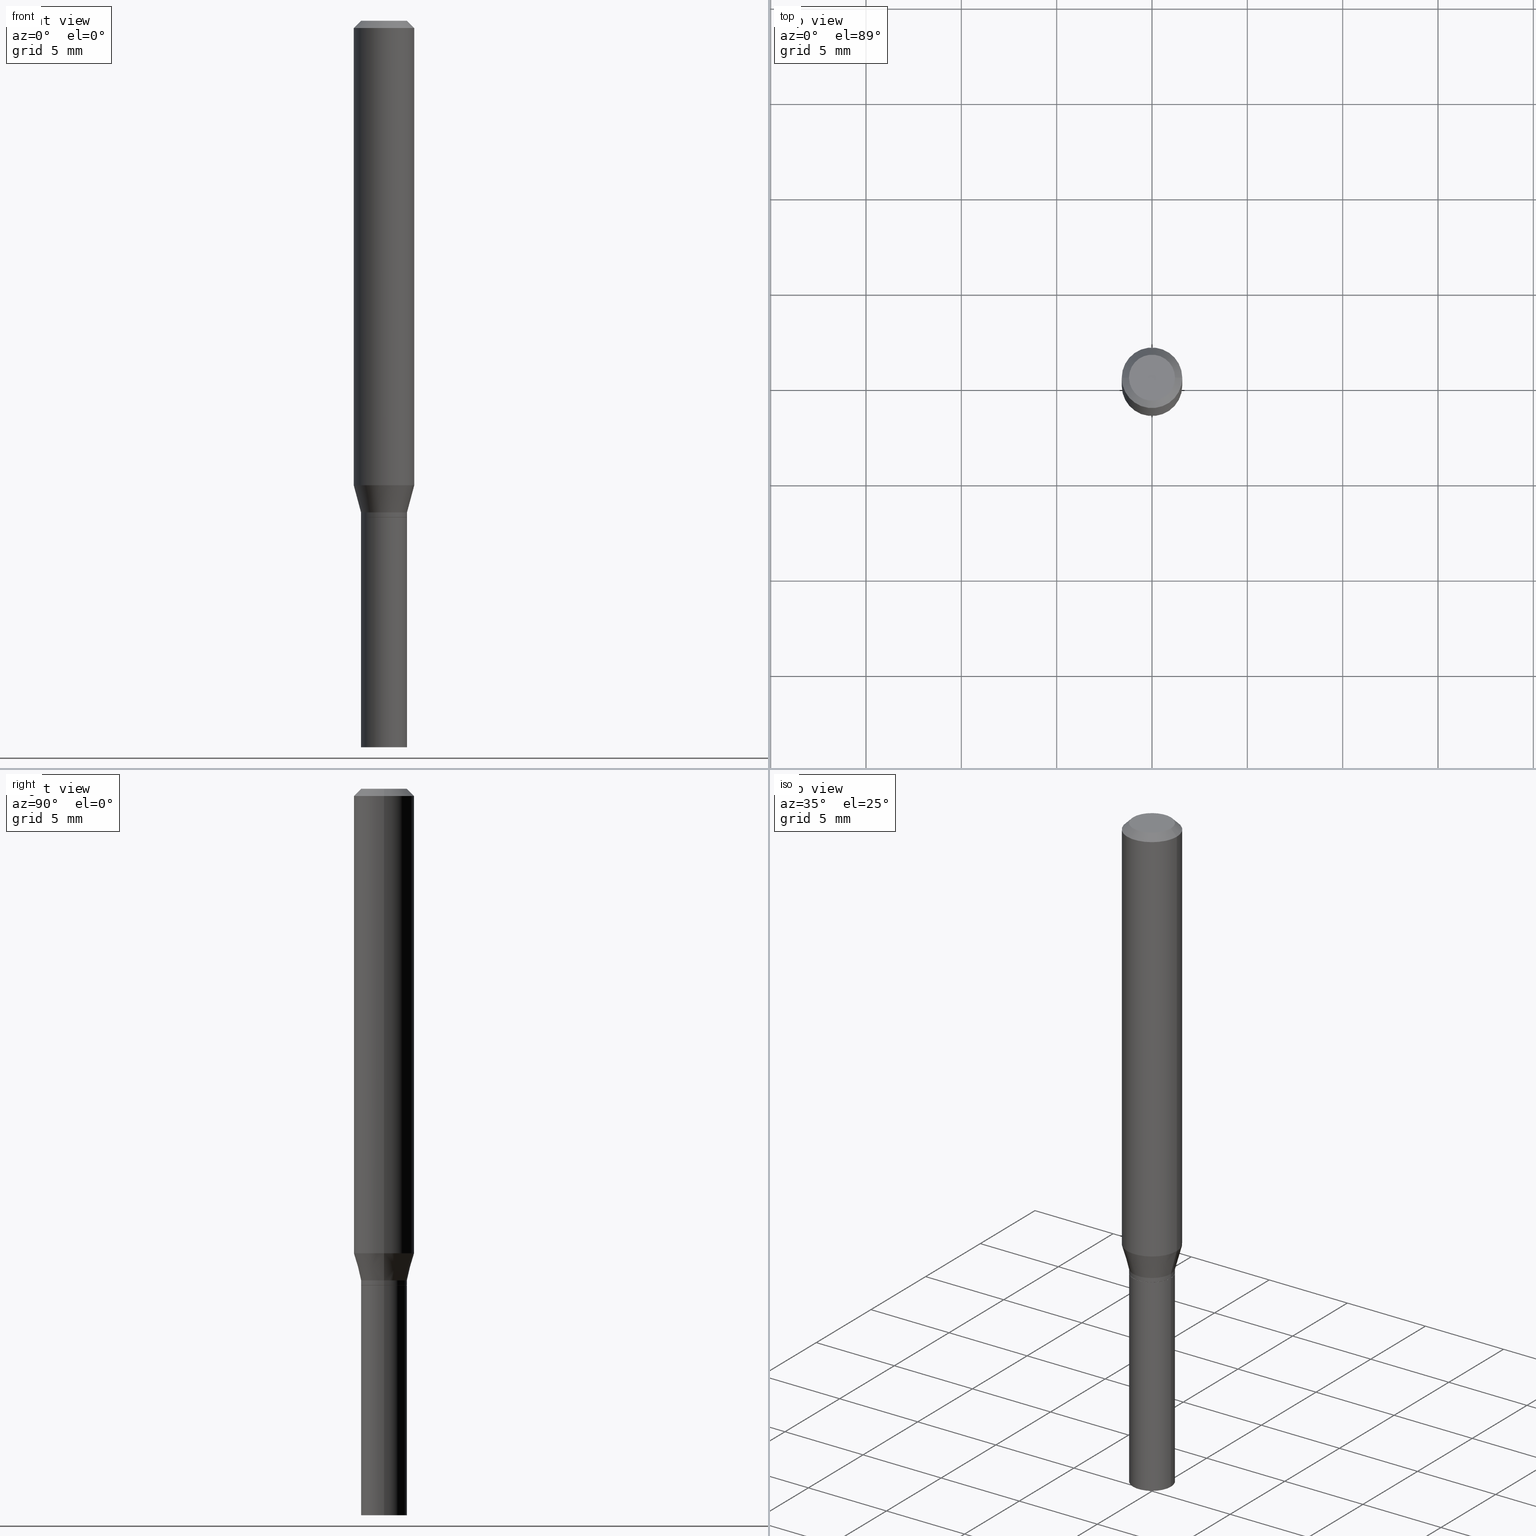
[diagram: canonical four-view strip — front | top / right | iso, engineering-drawing reading convention]
A machine part, canonical four-view strip (front | top / right | iso — engineering-drawing reading convention). The complete STEP part file that produces these views, byte-faithful:
ISO-10303-21;
HEADER;
FILE_DESCRIPTION (( 'STEP AP203' ),
    '1' );
FILE_NAME ('02662.STEP',
    '2024-03-18T21:10:51',
    ( '' ),
    ( '' ),
    'SwSTEP 2.0',
    'SolidWorks 2023',
    '' );
FILE_SCHEMA (( 'CONFIG_CONTROL_DESIGN' ));
ENDSEC;

DATA;
#1 = EDGE_CURVE ( 'NONE', #131, #328, #458, .T. ) ;
#2 = PRODUCT_DEFINITION_SHAPE ( 'NONE', 'NONE',  #362 ) ;
#3 = DIRECTION ( 'NONE',  ( 0.7071067811865456854, -7.319954787623249734E-15, -0.7071067811865493491 ) ) ;
#4 = AXIS2_PLACEMENT_3D ( 'NONE', #201, #378, #16 ) ;
#5 = CARTESIAN_POINT ( 'NONE',  ( -0.06250000000000000000, 4.440892098500626162E-16, -3.074334431409316114E-30 ) ) ;
#6 = ADVANCED_FACE ( 'NONE', ( #424 ), #275, .F. ) ;
#7 = ORIENTED_EDGE ( 'NONE', *, *, #88, .T. ) ;
#8 = CC_DESIGN_PERSON_AND_ORGANIZATION_ASSIGNMENT ( #314, #73, ( #396 ) ) ;
#9 = DIRECTION ( 'NONE',  ( 1.000000000000000000, 0.000000000000000000, 0.000000000000000000 ) ) ;
#10 = ORIENTED_EDGE ( 'NONE', *, *, #407, .F. ) ;
#11 = VERTEX_POINT ( 'NONE', #180 ) ;
#12 = DIRECTION ( 'NONE',  ( -2.445468806185136597E-29, 3.491481338843145583E-15, 1.000000000000000000 ) ) ;
#13 = DIRECTION ( 'NONE',  ( 1.000000000000000000, -6.982962677686261977E-15, 0.000000000000000000 ) ) ;
#14 = EDGE_CURVE ( 'NONE', #328, #281, #384, .T. ) ;
#15 = ORIENTED_EDGE ( 'NONE', *, *, #63, .F. ) ;
#16 = DIRECTION ( 'NONE',  ( 1.000000000000000000, -6.982962677686267499E-15, 4.876176775795935793E-29 ) ) ;
#17 = DIRECTION ( 'NONE',  ( 1.000000000000000000, -6.982962677686267499E-15, 4.884662768193073002E-29 ) ) ;
#18 = CYLINDRICAL_SURFACE ( 'NONE', #223, 0.04749999999999999362 ) ;
#19 = CONICAL_SURFACE ( 'NONE', #140, 0.04699999999999999317, 0.7853981633974739252 ) ;
#20 = FACE_OUTER_BOUND ( 'NONE', #121, .T. ) ;
#21 = DIRECTION ( 'NONE',  ( -2.445468806185136597E-29, 3.491481338843145583E-15, 1.000000000000000000 ) ) ;
#22 = CYLINDRICAL_SURFACE ( 'NONE', #191, 0.04750000000000005607 ) ;
#23 = EDGE_CURVE ( 'NONE', #334, #330, #159, .T. ) ;
#24 = DIRECTION ( 'NONE',  ( 1.000000000000000000, -6.982962677686265922E-15, 4.876176775795935793E-29 ) ) ;
#25 = PERSON_AND_ORGANIZATION ( #75, #112 ) ;
#26 = ORIENTED_EDGE ( 'NONE', *, *, #276, .T. ) ;
#27 = ORIENTED_EDGE ( 'NONE', *, *, #241, .T. ) ;
#28 = DIRECTION ( 'NONE',  ( -2.445468806185136597E-29, 3.491481338843145583E-15, 1.000000000000000000 ) ) ;
#29 = VECTOR ( 'NONE', #405, 39.37007874015748143 ) ;
#30 = COORDINATED_UNIVERSAL_TIME_OFFSET ( 5, 0, .BEHIND. ) ;
#31 = LOCAL_TIME ( 17, 10, 51.00000000000000000, #260 ) ;
#32 = DIRECTION ( 'NONE',  ( 1.000000000000000000, -6.982962677686262766E-15, 0.000000000000000000 ) ) ;
#33 = ORIENTED_EDGE ( 'NONE', *, *, #386, .T. ) ;
#34 = PRODUCT ( '02662', '02662', '', ( #160 ) ) ;
#35 = CARTESIAN_POINT ( 'NONE',  ( -0.04750000000000006301, -3.206345759439744774E-15, -1.014999999999999902 ) ) ;
#36 = AXIS2_PLACEMENT_3D ( 'NONE', #196, #12, #298 ) ;
#37 = ORIENTED_EDGE ( 'NONE', *, *, #299, .T. ) ;
#38 = CC_DESIGN_APPROVAL ( #280, ( #362 ) ) ;
#39 = VECTOR ( 'NONE', #453, 39.37007874015748143 ) ;
#40 = CIRCLE ( 'NONE', #411, 0.06250000000000000000 ) ;
#41 = EDGE_CURVE ( 'NONE', #181, #147, #295, .T. ) ;
#42 = DIRECTION ( 'NONE',  ( 1.000000000000000000, -6.982962677686270655E-15, 0.000000000000000000 ) ) ;
#43 = CARTESIAN_POINT ( 'NONE',  ( -0.04699999999999999317, -3.242164059332866120E-15, -1.025000000000000133 ) ) ;
#44 = ORIENTED_EDGE ( 'NONE', *, *, #355, .T. ) ;
#45 = DIRECTION ( 'NONE',  ( 1.000000000000000000, -6.982962677686272233E-15, 0.000000000000000000 ) ) ;
#46 = EDGE_LOOP ( 'NONE', ( #44, #33, #297, #51 ) ) ;
#47 = CARTESIAN_POINT ( 'NONE',  ( -0.04750000000000005607, 3.375077994860479867E-16, -2.336494167871083063E-30 ) ) ;
#48 = CARTESIAN_POINT ( 'NONE',  ( 3.668203209277704895E-29, -5.237222008264718177E-15, -1.500000000000000222 ) ) ;
#49 = CIRCLE ( 'NONE', #414, 0.04749999999999999362 ) ;
#50 = VERTEX_POINT ( 'NONE', #235 ) ;
#51 = ORIENTED_EDGE ( 'NONE', *, *, #465, .F. ) ;
#52 = CARTESIAN_POINT ( 'NONE',  ( 0.04699999999999999317, -3.906967618165479604E-15, -1.025000000000000133 ) ) ;
#53 = DIRECTION ( 'NONE',  ( -2.445468806185136597E-29, 3.491481338843145583E-15, 1.000000000000000000 ) ) ;
#54 = CARTESIAN_POINT ( 'NONE',  ( 2.345251630782798448E-29, -3.348397772672175740E-15, -0.9590192378864672573 ) ) ;
#55 = DIRECTION ( 'NONE',  ( -2.445468806185136597E-29, 3.491481338843145583E-15, 1.000000000000000000 ) ) ;
#56 = DIRECTION ( 'NONE',  ( -1.000000000000000000, 6.982962677686265922E-15, -4.876176775795935793E-29 ) ) ;
#57 = CIRCLE ( 'NONE', #343, 0.04749999999999999362 ) ;
#58 = CARTESIAN_POINT ( 'NONE',  ( 3.668203209277704895E-29, -5.237222008264718177E-15, -1.500000000000000222 ) ) ;
#59 = LOCAL_TIME ( 17, 10, 51.00000000000000000, #317 ) ;
#60 = EDGE_CURVE ( 'NONE', #131, #286, #115, .T. ) ;
#61 = DIRECTION ( 'NONE',  ( -2.445468806185136597E-29, 3.491481338843145583E-15, 1.000000000000000000 ) ) ;
#62 = DIRECTION ( 'NONE',  ( 0.000000000000000000, 0.000000000000000000, 1.000000000000000000 ) ) ;
#63 = EDGE_CURVE ( 'NONE', #147, #50, #49, .T. ) ;
#64 = AXIS2_PLACEMENT_3D ( 'NONE', #120, #417, #236 ) ;
#65 = CIRCLE ( 'NONE', #268, 0.04749999999999999362 ) ;
#66 = ORIENTED_EDGE ( 'NONE', *, *, #226, .T. ) ;
#67 = DIRECTION ( 'NONE',  ( 2.438088387897960049E-29, -3.491481338843145188E-15, -1.000000000000000000 ) ) ;
#68 = DATE_TIME_ROLE ( 'classification_date' ) ;
#69 = ORIENTED_EDGE ( 'NONE', *, *, #143, .F. ) ;
#70 = ADVANCED_FACE ( 'NONE', ( #92 ), #336, .T. ) ;
#71 = ORIENTED_EDGE ( 'NONE', *, *, #23, .T. ) ;
#72 = EDGE_CURVE ( 'NONE', #85, #114, #435, .T. ) ;
#73 = PERSON_AND_ORGANIZATION_ROLE ( 'design_supplier' ) ;
#74 = ORIENTED_EDGE ( 'NONE', *, *, #320, .T. ) ;
#75 = PERSON ( 'UNSPECIFIED', 'UNSPECIFIED', 'UNSPECIFIED', ('UNSPECIFIED'), ('UNSPECIFIED'), ('UNSPECIFIED') ) ;
#76 = ORIENTED_EDGE ( 'NONE', *, *, #143, .T. ) ;
#77 = ADVANCED_FACE ( 'NONE', ( #408 ), #302, .T. ) ;
#78 = CC_DESIGN_DATE_AND_TIME_ASSIGNMENT ( #184, #68, ( #141 ) ) ;
#79 = FACE_OUTER_BOUND ( 'NONE', #107, .T. ) ;
#80 = AXIS2_PLACEMENT_3D ( 'NONE', #466, #109, #327 ) ;
#81 = APPROVAL_PERSON_ORGANIZATION ( #296, #280, #238 ) ;
#82 = CARTESIAN_POINT ( 'NONE',  ( 2.482150838277913354E-29, -3.543853558925792662E-15, -1.014999999999999902 ) ) ;
#83 = DATE_AND_TIME ( #116, #31 ) ;
#84 = CARTESIAN_POINT ( 'NONE',  ( 2.506605526339765180E-29, -3.578768372314224311E-15, -1.025000000000000133 ) ) ;
#85 = VERTEX_POINT ( 'NONE', #442 ) ;
#86 = CARTESIAN_POINT ( 'NONE',  ( 0.000000000000000000, 0.000000000000000000, 0.000000000000000000 ) ) ;
#87 = DIRECTION ( 'NONE',  ( -2.445468806185136597E-29, 3.491481338843145583E-15, 1.000000000000000000 ) ) ;
#88 = EDGE_CURVE ( 'NONE', #334, #328, #376, .T. ) ;
#89 = CIRCLE ( 'NONE', #423, 0.06250000000000000000 ) ;
#90 = APPROVAL_PERSON_ORGANIZATION ( #321, #346, #392 ) ;
#91 = CARTESIAN_POINT ( 'NONE',  ( -0.04750000000000005607, -3.239514832158754919E-15, -1.024500000000000188 ) ) ;
#92 = FACE_OUTER_BOUND ( 'NONE', #222, .T. ) ;
#93 = CARTESIAN_POINT ( 'NONE',  ( -0.06250000000000000000, -1.256295786527348794E-15, -0.01499999999999999944 ) ) ;
#94 = ADVANCED_FACE ( 'NONE', ( #271 ), #311, .F. ) ;
#95 = CARTESIAN_POINT ( 'NONE',  ( 0.000000000000000000, 0.000000000000000000, 0.000000000000000000 ) ) ;
#96 = CARTESIAN_POINT ( 'NONE',  ( -0.04749999999999999362, -4.070487390803424145E-15, -1.500000000000000222 ) ) ;
#97 = CIRCLE ( 'NONE', #429, 0.04699999999999999317 ) ;
#98 = CARTESIAN_POINT ( 'NONE',  ( 2.506605526339765180E-29, -3.578768372314224311E-15, -1.025000000000000133 ) ) ;
#99 = SECURITY_CLASSIFICATION_LEVEL ( 'unclassified' ) ;
#100 = AXIS2_PLACEMENT_3D ( 'NONE', #54, #154, #449 ) ;
#101 = ORIENTED_EDGE ( 'NONE', *, *, #135, .T. ) ;
#102 = CARTESIAN_POINT ( 'NONE',  ( 0.06250000000000000000, -4.364351673553916694E-16, 3.047610484872459871E-30 ) ) ;
#103 = ORIENTED_EDGE ( 'NONE', *, *, #355, .F. ) ;
#104 =( NAMED_UNIT ( * ) PLANE_ANGLE_UNIT ( ) SI_UNIT ( $, .RADIAN. ) );
#105 = ORIENTED_EDGE ( 'NONE', *, *, #387, .T. ) ;
#106 = DIRECTION ( 'NONE',  ( 1.000000000000000000, -6.982962677686266711E-15, 0.000000000000000000 ) ) ;
#107 = EDGE_LOOP ( 'NONE', ( #391, #326, #315, #190 ) ) ;
#108 = CARTESIAN_POINT ( 'NONE',  ( 0.06250000000000000000, -4.811533449433679005E-16, -0.01499999999999999944 ) ) ;
#109 = DIRECTION ( 'NONE',  ( -2.445468806185136597E-29, 3.491481338843145583E-15, 1.000000000000000000 ) ) ;
#110 = VECTOR ( 'NONE', #452, 39.37007874015748143 ) ;
#111 = ORIENTED_EDGE ( 'NONE', *, *, #72, .T. ) ;
#112 = ORGANIZATION ( 'UNSPECIFIED', 'UNSPECIFIED', '' ) ;
#113 = APPROVAL_ROLE ( '' ) ;
#114 = VERTEX_POINT ( 'NONE', #93 ) ;
#115 = LINE ( 'NONE', #47, #397 ) ;
#116 = CALENDAR_DATE ( 2024, 18, 3 ) ;
#117 = EDGE_CURVE ( 'NONE', #256, #354, #65, .T. ) ;
#118 = CARTESIAN_POINT ( 'NONE',  ( 0.04750000000000005607, -3.908713358834901107E-15, -1.024500000000000188 ) ) ;
#119 = DIRECTION ( 'NONE',  ( 1.000000000000000000, -6.982962677686261977E-15, 0.000000000000000000 ) ) ;
#120 = CARTESIAN_POINT ( 'NONE',  ( 3.316907271900976096E-16, 0.04749999999999999362, -1.264584670729918775E-16 ) ) ;
#121 = EDGE_LOOP ( 'NONE', ( #10, #200, #152, #462 ) ) ;
#122 = EDGE_LOOP ( 'NONE', ( #398, #290, #283, #372 ) ) ;
#123 = AXIS2_PLACEMENT_3D ( 'NONE', #273, #300, #198 ) ;
#124 = DIRECTION ( 'NONE',  ( 0.7071067811865656694, -2.468850131082446387E-15, 0.7071067811865294761 ) ) ;
#125 = LINE ( 'NONE', #350, #389 ) ;
#126 = CIRCLE ( 'NONE', #257, 0.04750000000000005607 ) ;
#127 = ADVANCED_FACE ( 'NONE', ( #447 ), #318, .T. ) ;
#128 = DIRECTION ( 'NONE',  ( 1.000000000000000000, -6.982962677686267499E-15, 4.884662768193073002E-29 ) ) ;
#129 = DIRECTION ( 'NONE',  ( 1.000000000000000000, -6.982962677686262766E-15, 0.000000000000000000 ) ) ;
#130 = CARTESIAN_POINT ( 'NONE',  ( 3.668203209277705088E-31, -5.237222008264718399E-17, -0.01499999999999999944 ) ) ;
#131 = VERTEX_POINT ( 'NONE', #91 ) ;
#132 = FACE_OUTER_BOUND ( 'NONE', #361, .T. ) ;
#133 = ORIENTED_EDGE ( 'NONE', *, *, #63, .T. ) ;
#134 = VECTOR ( 'NONE', #416, 39.37007874015748143 ) ;
#135 = EDGE_CURVE ( 'NONE', #354, #256, #57, .T. ) ;
#136 = APPROVAL_DATE_TIME ( #459, #346 ) ;
#137 = UNCERTAINTY_MEASURE_WITH_UNIT (LENGTH_MEASURE( 1.000000000000000082E-05 ), #258, 'distance_accuracy_value', 'NONE');
#138 = APPROVAL_STATUS ( 'not_yet_approved' ) ;
#139 = EDGE_LOOP ( 'NONE', ( #316, #101 ) ) ;
#140 = AXIS2_PLACEMENT_3D ( 'NONE', #98, #55, #272 ) ;
#141 = SECURITY_CLASSIFICATION ( '', '', #99 ) ;
#142 = AXIS2_PLACEMENT_3D ( 'NONE', #162, #165, #440 ) ;
#143 = EDGE_CURVE ( 'NONE', #328, #131, #126, .T. ) ;
#144 = CARTESIAN_POINT ( 'NONE',  ( -0.06250000000000000000, -2.904308562822113124E-15, -0.9590192378864672573 ) ) ;
#145 = DIRECTION ( 'NONE',  ( -1.000000000000000000, 6.982962677686266711E-15, 0.000000000000000000 ) ) ;
#146 = PERSON_AND_ORGANIZATION_ROLE ( 'classification_officer' ) ;
#147 = VERTEX_POINT ( 'NONE', #237 ) ;
#148 = ADVANCED_FACE ( 'NONE', ( #20 ), #305, .T. ) ;
#149 = AXIS2_PLACEMENT_3D ( 'NONE', #421, #67, #56 ) ;
#150 = CC_DESIGN_PERSON_AND_ORGANIZATION_ASSIGNMENT ( #460, #179, ( #396 ) ) ;
#151 = CONICAL_SURFACE ( 'NONE', #415, 0.06250000000000000000, 0.7853981633974457255 ) ;
#152 = ORIENTED_EDGE ( 'NONE', *, *, #381, .T. ) ;
#153 = COORDINATED_UNIVERSAL_TIME_OFFSET ( 5, 0, .BEHIND. ) ;
#154 = DIRECTION ( 'NONE',  ( -2.445468806185136597E-29, 3.491481338843145583E-15, 1.000000000000000000 ) ) ;
#155 = CIRCLE ( 'NONE', #188, 0.04750000000000006301 ) ;
#156 = ORIENTED_EDGE ( 'NONE', *, *, #226, .F. ) ;
#157 = ADVANCED_FACE ( 'NONE', ( #377 ), #19, .T. ) ;
#158 = ORIENTED_EDGE ( 'NONE', *, *, #1, .F. ) ;
#159 = CIRCLE ( 'NONE', #220, 0.04699999999999999317 ) ;
#160 = MECHANICAL_CONTEXT ( 'NONE', #309, 'mechanical' ) ;
#161 = MANIFOLD_SOLID_BREP ( 'Body-Move/Copy2[1]', #358 ) ;
#162 = CARTESIAN_POINT ( 'NONE',  ( 3.668203209277705088E-31, -5.237222008264718399E-17, -0.01499999999999999944 ) ) ;
#163 = DIRECTION ( 'NONE',  ( -1.000000000000000000, 6.982962677686266711E-15, 0.000000000000000000 ) ) ;
#164 = CARTESIAN_POINT ( 'NONE',  ( 2.482150838277913354E-29, -3.543853558925792662E-15, -1.014999999999999902 ) ) ;
#165 = DIRECTION ( 'NONE',  ( -2.445468806185136597E-29, 3.491481338843145583E-15, 1.000000000000000000 ) ) ;
#166 = DIRECTION ( 'NONE',  ( 2.445468806185136597E-29, -3.491481338843145583E-15, -1.000000000000000000 ) ) ;
#167 = DIMENSIONAL_EXPONENTS ( 1.000000000000000000, 0.000000000000000000, 0.000000000000000000, 0.000000000000000000, 0.000000000000000000, 0.000000000000000000, 0.000000000000000000 ) ;
#168 = DIRECTION ( 'NONE',  ( 1.000000000000000000, -6.982962677686267499E-15, 4.876176775795935793E-29 ) ) ;
#169 = CC_DESIGN_DATE_AND_TIME_ASSIGNMENT ( #329, #293, ( #362 ) ) ;
#170 = VECTOR ( 'NONE', #287, 39.37007874015748143 ) ;
#171 = CARTESIAN_POINT ( 'NONE',  ( 0.04749999999999999362, -5.568912735454815688E-15, -1.500000000000000222 ) ) ;
#172 = CARTESIAN_POINT ( 'NONE',  ( -0.04749999999999999362, 3.375077994860475429E-16, -2.336494167871079910E-30 ) ) ;
#173 = DIRECTION ( 'NONE',  ( 1.000000000000000000, -6.982962677686267499E-15, 4.876176775795935793E-29 ) ) ;
#174 = DIRECTION ( 'NONE',  ( -2.445468806185136597E-29, 3.491481338843145583E-15, 1.000000000000000000 ) ) ;
#175 = PLANE ( 'NONE',  #64 ) ;
#176 = APPLICATION_PROTOCOL_DEFINITION ( 'international standard', 'config_control_design', 1994, #309 ) ;
#177 = CIRCLE ( 'NONE', #366, 0.04749999999999999362 ) ;
#178 = ADVANCED_FACE ( 'NONE', ( #418 ), #175, .F. ) ;
#179 = PERSON_AND_ORGANIZATION_ROLE ( 'creator' ) ;
#180 = CARTESIAN_POINT ( 'NONE',  ( 0.06250000000000000000, -3.784832940027567410E-15, -0.9590192378864672573 ) ) ;
#181 = VERTEX_POINT ( 'NONE', #171 ) ;
#182 = ORIENTED_EDGE ( 'NONE', *, *, #60, .T. ) ;
#183 = VECTOR ( 'NONE', #413, 39.37007874015748143 ) ;
#184 = DATE_AND_TIME ( #432, #212 ) ;
#185 = DIRECTION ( 'NONE',  ( 2.445468806185136597E-29, -3.491481338843145583E-15, -1.000000000000000000 ) ) ;
#186 = ORIENTED_EDGE ( 'NONE', *, *, #299, .F. ) ;
#187 = ADVANCED_FACE ( 'NONE', ( #209 ), #356, .T. ) ;
#188 = AXIS2_PLACEMENT_3D ( 'NONE', #373, #202, #278 ) ;
#189 = CARTESIAN_POINT ( 'NONE',  ( 3.668203209277705088E-31, -5.237222008264718399E-17, -0.01499999999999999944 ) ) ;
#190 = ORIENTED_EDGE ( 'NONE', *, *, #381, .F. ) ;
#191 = AXIS2_PLACEMENT_3D ( 'NONE', #385, #61, #173 ) ;
#192 = ORIENTED_EDGE ( 'NONE', *, *, #14, .F. ) ;
#193 = ADVANCED_FACE ( 'NONE', ( #132 ), #240, .F. ) ;
#194 = ORIENTED_EDGE ( 'NONE', *, *, #135, .F. ) ;
#195 = ORIENTED_EDGE ( 'NONE', *, *, #289, .F. ) ;
#196 = CARTESIAN_POINT ( 'NONE',  ( 0.000000000000000000, 0.000000000000000000, 0.000000000000000000 ) ) ;
#197 = CALENDAR_DATE ( 2024, 18, 3 ) ;
#198 = DIRECTION ( 'NONE',  ( 1.000000000000000000, -6.982962677686272233E-15, 0.000000000000000000 ) ) ;
#199 = CARTESIAN_POINT ( 'NONE',  ( 2.482150838277913354E-29, -3.543853558925792662E-15, -1.014999999999999902 ) ) ;
#200 = ORIENTED_EDGE ( 'NONE', *, *, #289, .T. ) ;
#201 = CARTESIAN_POINT ( 'NONE',  ( 0.000000000000000000, 0.000000000000000000, 0.000000000000000000 ) ) ;
#202 = DIRECTION ( 'NONE',  ( -2.445468806185136597E-29, 3.491481338843145583E-15, 1.000000000000000000 ) ) ;
#203 = CC_DESIGN_PERSON_AND_ORGANIZATION_ASSIGNMENT ( #427, #242, ( #362 ) ) ;
#204 = FACE_OUTER_BOUND ( 'NONE', #46, .T. ) ;
#205 = CARTESIAN_POINT ( 'NONE',  ( -1.926388536342670348E-45, 2.750372284034196662E-31, 7.877379304411503798E-17 ) ) ;
#206 = VECTOR ( 'NONE', #124, 39.37007874015748143 ) ;
#207 = CC_DESIGN_APPROVAL ( #346, ( #141 ) ) ;
#208 = DIRECTION ( 'NONE',  ( -0.7071067811865656694, 7.493145998870420424E-15, 0.7071067811865294761 ) ) ;
#209 = FACE_OUTER_BOUND ( 'NONE', #232, .T. ) ;
#210 = PRODUCT_RELATED_PRODUCT_CATEGORY ( 'detail', '', ( #34 ) ) ;
#211 = VECTOR ( 'NONE', #394, 39.37007874015748143 ) ;
#212 = LOCAL_TIME ( 17, 10, 51.00000000000000000, #30 ) ;
#213 = CLOSED_SHELL ( 'NONE', ( #77, #187, #127, #430, #306, #426, #148, #399, #178, #94, #157, #250 ) ) ;
#214 = VECTOR ( 'NONE', #319, 39.37007874015748143 ) ;
#215 = CARTESIAN_POINT ( 'NONE',  ( 2.345251630782798448E-29, -3.348397772672175740E-15, -0.9590192378864672573 ) ) ;
#216 = SHAPE_DEFINITION_REPRESENTATION ( #2, #243 ) ;
#217 = ORIENTED_EDGE ( 'NONE', *, *, #276, .F. ) ;
#218 = EDGE_LOOP ( 'NONE', ( #194, #225, #111, #246 ) ) ;
#219 = LENGTH_MEASURE_WITH_UNIT ( LENGTH_MEASURE( 0.02539999999999999897 ), #437 );
#220 = AXIS2_PLACEMENT_3D ( 'NONE', #313, #174, #455 ) ;
#221 = ORIENTED_EDGE ( 'NONE', *, *, #14, .T. ) ;
#222 = EDGE_LOOP ( 'NONE', ( #186, #66, #393, #255 ) ) ;
#223 = AXIS2_PLACEMENT_3D ( 'NONE', #409, #87, #168 ) ;
#224 = LINE ( 'NONE', #400, #211 ) ;
#225 = ORIENTED_EDGE ( 'NONE', *, *, #461, .T. ) ;
#226 = EDGE_CURVE ( 'NONE', #352, #181, #244, .T. ) ;
#227 = FACE_OUTER_BOUND ( 'NONE', #122, .T. ) ;
#228 = CARTESIAN_POINT ( 'NONE',  ( 0.04749999999999999362, -4.035134999187576651E-16, 7.877379304411762643E-17 ) ) ;
#229 = DATE_AND_TIME ( #197, #344 ) ;
#230 = CARTESIAN_POINT ( 'NONE',  ( -0.04749999999999999362, 3.578768372314211492E-16, 7.877379304411263442E-17 ) ) ;
#231 = AXIS2_PLACEMENT_3D ( 'NONE', #86, #62, #9 ) ;
#232 = EDGE_LOOP ( 'NONE', ( #71, #27, #69, #259 ) ) ;
#233 = DIRECTION ( 'NONE',  ( -2.445468806185136877E-29, 3.491481338843145188E-15, 1.000000000000000000 ) ) ;
#234 = DIRECTION ( 'NONE',  ( -2.438088387897960049E-29, 3.491481338843145188E-15, 1.000000000000000000 ) ) ;
#235 = CARTESIAN_POINT ( 'NONE',  ( -0.04749999999999999362, -4.070487390803424145E-15, -1.025000000000000133 ) ) ;
#236 = DIRECTION ( 'NONE',  ( -1.000000000000000000, 6.982962677686265922E-15, -4.876176775795935793E-29 ) ) ;
#237 = CARTESIAN_POINT ( 'NONE',  ( 0.04749999999999999362, -3.910459099504321822E-15, -1.025000000000000133 ) ) ;
#238 = APPROVAL_ROLE ( '' ) ;
#239 = CONICAL_SURFACE ( 'NONE', #351, 0.04750000000000006301, 0.2617993877991502405 ) ;
#240 = PLANE ( 'NONE',  #446 ) ;
#241 = EDGE_CURVE ( 'NONE', #330, #131, #125, .T. ) ;
#242 = PERSON_AND_ORGANIZATION_ROLE ( 'creator' ) ;
#243 = ADVANCED_BREP_SHAPE_REPRESENTATION ( '02662', ( #161, #310, #231 ), #403 ) ;
#244 = CIRCLE ( 'NONE', #390, 0.04749999999999999362 ) ;
#245 = AXIS2_PLACEMENT_3D ( 'NONE', #436, #360, #288 ) ;
#246 = ORIENTED_EDGE ( 'NONE', *, *, #335, .F. ) ;
#247 = DIRECTION ( 'NONE',  ( -2.445468806185136597E-29, 3.491481338843145583E-15, 1.000000000000000000 ) ) ;
#248 = EDGE_LOOP ( 'NONE', ( #133, #105 ) ) ;
#249 = LINE ( 'NONE', #108, #270 ) ;
#250 = ADVANCED_FACE ( 'NONE', ( #347 ), #22, .T. ) ;
#251 = CYLINDRICAL_SURFACE ( 'NONE', #245, 0.06250000000000000000 ) ;
#252 = CALENDAR_DATE ( 2024, 18, 3 ) ;
#253 = ORIENTED_EDGE ( 'NONE', *, *, #41, .F. ) ;
#254 = LINE ( 'NONE', #35, #170 ) ;
#255 = ORIENTED_EDGE ( 'NONE', *, *, #387, .F. ) ;
#256 = VERTEX_POINT ( 'NONE', #230 ) ;
#257 = AXIS2_PLACEMENT_3D ( 'NONE', #277, #456, #412 ) ;
#258 =( CONVERSION_BASED_UNIT ( 'INCH', #219 ) LENGTH_UNIT ( ) NAMED_UNIT ( #167 ) );
#259 = ORIENTED_EDGE ( 'NONE', *, *, #88, .F. ) ;
#260 = COORDINATED_UNIVERSAL_TIME_OFFSET ( 5, 0, .BEHIND. ) ;
#261 = APPROVAL_DATE_TIME ( #83, #404 ) ;
#262 = APPLICATION_CONTEXT ( 'configuration controlled 3d designs of mechanical parts and assemblies' ) ;
#263 = FACE_OUTER_BOUND ( 'NONE', #410, .T. ) ;
#264 = ORIENTED_EDGE ( 'NONE', *, *, #241, .F. ) ;
#265 = DIRECTION ( 'NONE',  ( -2.445468806185136597E-29, 3.491481338843145583E-15, 1.000000000000000000 ) ) ;
#266 = CARTESIAN_POINT ( 'NONE',  ( -0.04750000000000006301, -3.055327161130928752E-15, -1.014999999999999902 ) ) ;
#267 = CARTESIAN_POINT ( 'NONE',  ( -0.06250000000000000000, 3.840629472727444916E-16, -0.01499999999999999944 ) ) ;
#268 = AXIS2_PLACEMENT_3D ( 'NONE', #454, #422, #17 ) ;
#269 = EDGE_LOOP ( 'NONE', ( #264, #74, #7, #158 ) ) ;
#270 = VECTOR ( 'NONE', #3, 39.37007874015748143 ) ;
#271 = FACE_OUTER_BOUND ( 'NONE', #401, .T. ) ;
#272 = DIRECTION ( 'NONE',  ( 1.000000000000000000, -6.982962677686272233E-15, 0.000000000000000000 ) ) ;
#273 = CARTESIAN_POINT ( 'NONE',  ( 2.506605526339765180E-29, -3.578768372314224311E-15, -1.025000000000000133 ) ) ;
#274 = DIRECTION ( 'NONE',  ( -2.445468806185136597E-29, 3.491481338843145583E-15, 1.000000000000000000 ) ) ;
#275 = PLANE ( 'NONE',  #149 ) ;
#276 = EDGE_CURVE ( 'NONE', #286, #281, #155, .T. ) ;
#277 = CARTESIAN_POINT ( 'NONE',  ( 2.505382791936672378E-29, -3.577022631644802807E-15, -1.024500000000000188 ) ) ;
#278 = DIRECTION ( 'NONE',  ( 1.000000000000000000, -6.982962677686262766E-15, 0.000000000000000000 ) ) ;
#279 = APPROVAL_DATE_TIME ( #229, #280 ) ;
#280 = APPROVAL ( #441, 'UNSPECIFIED' ) ;
#281 = VERTEX_POINT ( 'NONE', #340 ) ;
#282 = DIRECTION ( 'NONE',  ( -2.445468806185136597E-29, 3.491481338843145583E-15, 1.000000000000000000 ) ) ;
#283 = ORIENTED_EDGE ( 'NONE', *, *, #335, .T. ) ;
#284 = EDGE_CURVE ( 'NONE', #181, #352, #177, .T. ) ;
#285 = LINE ( 'NONE', #102, #29 ) ;
#286 = VERTEX_POINT ( 'NONE', #266 ) ;
#287 = DIRECTION ( 'NONE',  ( -0.2588190451025215166, 5.211531920934551042E-15, 0.9659258262890679791 ) ) ;
#288 = DIRECTION ( 'NONE',  ( 1.000000000000000000, -6.982962677686266711E-15, 4.876176775795935793E-29 ) ) ;
#289 = EDGE_CURVE ( 'NONE', #406, #11, #294, .T. ) ;
#290 = ORIENTED_EDGE ( 'NONE', *, *, #117, .F. ) ;
#291 = FACE_OUTER_BOUND ( 'NONE', #368, .T. ) ;
#292 = ORIENTED_EDGE ( 'NONE', *, *, #320, .F. ) ;
#293 = DATE_TIME_ROLE ( 'creation_date' ) ;
#294 = CIRCLE ( 'NONE', #100, 0.06250000000000000000 ) ;
#295 = LINE ( 'NONE', #339, #134 ) ;
#296 = PERSON_AND_ORGANIZATION ( #75, #112 ) ;
#297 = ORIENTED_EDGE ( 'NONE', *, *, #379, .F. ) ;
#298 = DIRECTION ( 'NONE',  ( 1.000000000000000000, -6.982962677686267499E-15, 4.876176775795935793E-29 ) ) ;
#299 = EDGE_CURVE ( 'NONE', #352, #50, #374, .T. ) ;
#300 = DIRECTION ( 'NONE',  ( -2.445468806185136597E-29, 3.491481338843145583E-15, 1.000000000000000000 ) ) ;
#301 = CARTESIAN_POINT ( 'NONE',  ( 0.04699999999999999317, -3.906967618165479604E-15, -1.025000000000000133 ) ) ;
#302 = CYLINDRICAL_SURFACE ( 'NONE', #36, 0.04750000000000005607 ) ;
#303 = DIRECTION ( 'NONE',  ( -2.438088387897960049E-29, 3.491481338843145188E-15, 1.000000000000000000 ) ) ;
#304 = AXIS2_PLACEMENT_3D ( 'NONE', #425, #234, #24 ) ;
#305 = CYLINDRICAL_SURFACE ( 'NONE', #324, 0.06250000000000000000 ) ;
#306 = ADVANCED_FACE ( 'NONE', ( #204 ), #439, .T. ) ;
#307 = CARTESIAN_POINT ( 'NONE',  ( 0.04750000000000005607, -3.316907271900981026E-16, 2.316183968503072234E-30 ) ) ;
#308 = DIRECTION ( 'NONE',  ( 1.000000000000000000, -6.982962677686261977E-15, 0.000000000000000000 ) ) ;
#309 = APPLICATION_CONTEXT ( 'configuration controlled 3d designs of mechanical parts and assemblies' ) ;
#310 = MANIFOLD_SOLID_BREP ( 'Body-Move/Copy2[2]', #213 ) ;
#311 = PLANE ( 'NONE',  #304 ) ;
#312 = APPLICATION_PROTOCOL_DEFINITION ( 'international standard', 'config_control_design', 1994, #262 ) ;
#313 = CARTESIAN_POINT ( 'NONE',  ( 2.506605526339765180E-29, -3.578768372314224311E-15, -1.025000000000000133 ) ) ;
#314 = PERSON_AND_ORGANIZATION ( #75, #112 ) ;
#315 = ORIENTED_EDGE ( 'NONE', *, *, #72, .F. ) ;
#316 = ORIENTED_EDGE ( 'NONE', *, *, #117, .T. ) ;
#317 = COORDINATED_UNIVERSAL_TIME_OFFSET ( 5, 0, .BEHIND. ) ;
#318 = CONICAL_SURFACE ( 'NONE', #325, 0.06250000000000000000, 0.7853981633974457255 ) ;
#319 = DIRECTION ( 'NONE',  ( -2.445468806185136877E-29, 3.491481338843145188E-15, 1.000000000000000000 ) ) ;
#320 = EDGE_CURVE ( 'NONE', #330, #334, #97, .T. ) ;
#321 = PERSON_AND_ORGANIZATION ( #75, #112 ) ;
#322 = LINE ( 'NONE', #5, #214 ) ;
#323 = ORIENTED_EDGE ( 'NONE', *, *, #284, .F. ) ;
#324 = AXIS2_PLACEMENT_3D ( 'NONE', #95, #443, #380 ) ;
#325 = AXIS2_PLACEMENT_3D ( 'NONE', #130, #166, #163 ) ;
#326 = ORIENTED_EDGE ( 'NONE', *, *, #407, .T. ) ;
#327 = DIRECTION ( 'NONE',  ( 1.000000000000000000, -6.982962677686261977E-15, 0.000000000000000000 ) ) ;
#328 = VERTEX_POINT ( 'NONE', #118 ) ;
#329 = DATE_AND_TIME ( #388, #331 ) ;
#330 = VERTEX_POINT ( 'NONE', #43 ) ;
#331 = LOCAL_TIME ( 17, 10, 51.00000000000000000, #153 ) ;
#332 = DIRECTION ( 'NONE',  ( 1.000000000000000000, -6.982962677686262766E-15, 0.000000000000000000 ) ) ;
#333 = AXIS2_PLACEMENT_3D ( 'NONE', #349, #21, #463 ) ;
#334 = VERTEX_POINT ( 'NONE', #301 ) ;
#335 = EDGE_CURVE ( 'NONE', #256, #114, #419, .T. ) ;
#336 = CYLINDRICAL_SURFACE ( 'NONE', #4, 0.04749999999999999362 ) ;
#337 = DIRECTION ( 'NONE',  ( -2.445468806185136597E-29, 3.491481338843145583E-15, 1.000000000000000000 ) ) ;
#338 = ORIENTED_EDGE ( 'NONE', *, *, #284, .T. ) ;
#339 = CARTESIAN_POINT ( 'NONE',  ( 0.04749999999999999362, -3.316907271900976589E-16, 2.316183968503069081E-30 ) ) ;
#340 = CARTESIAN_POINT ( 'NONE',  ( 0.04750000000000006301, -3.875544286115890173E-15, -1.014999999999999902 ) ) ;
#341 = DIRECTION ( 'NONE',  ( -2.445468806185136597E-29, 3.491481338843145583E-15, 1.000000000000000000 ) ) ;
#342 = DIRECTION ( 'NONE',  ( -2.445468806185136597E-29, 3.491481338843145583E-15, 1.000000000000000000 ) ) ;
#343 = AXIS2_PLACEMENT_3D ( 'NONE', #205, #342, #128 ) ;
#344 = LOCAL_TIME ( 17, 10, 51.00000000000000000, #457 ) ;
#345 = PERSON_AND_ORGANIZATION ( #75, #112 ) ;
#346 = APPROVAL ( #138, 'UNSPECIFIED' ) ;
#347 = FACE_OUTER_BOUND ( 'NONE', #367, .T. ) ;
#348 =( NAMED_UNIT ( * ) SI_UNIT ( $, .STERADIAN. ) SOLID_ANGLE_UNIT ( ) );
#349 = CARTESIAN_POINT ( 'NONE',  ( 2.505382791936672378E-29, -3.577022631644802807E-15, -1.024500000000000188 ) ) ;
#350 = CARTESIAN_POINT ( 'NONE',  ( -0.04699999999999999317, -3.244813286506977716E-15, -1.025000000000000133 ) ) ;
#351 = AXIS2_PLACEMENT_3D ( 'NONE', #82, #28, #32 ) ;
#352 = VERTEX_POINT ( 'NONE', #96 ) ;
#353 = PERSON_AND_ORGANIZATION ( #75, #112 ) ;
#354 = VERTEX_POINT ( 'NONE', #228 ) ;
#355 = EDGE_CURVE ( 'NONE', #281, #286, #402, .T. ) ;
#356 = CONICAL_SURFACE ( 'NONE', #123, 0.04699999999999999317, 0.7853981633974739252 ) ;
#357 = APPROVAL_PERSON_ORGANIZATION ( #345, #404, #113 ) ;
#358 = CLOSED_SHELL ( 'NONE', ( #371, #193, #70, #6 ) ) ;
#359 = ORIENTED_EDGE ( 'NONE', *, *, #23, .F. ) ;
#360 = DIRECTION ( 'NONE',  ( -2.445468806185136597E-29, 3.491481338843145583E-15, 1.000000000000000000 ) ) ;
#361 = EDGE_LOOP ( 'NONE', ( #323, #156 ) ) ;
#362 = PRODUCT_DEFINITION ( 'UNKNOWN', '', #396, #428 ) ;
#363 = ORIENTED_EDGE ( 'NONE', *, *, #60, .F. ) ;
#364 = AXIS2_PLACEMENT_3D ( 'NONE', #164, #341, #332 ) ;
#365 = ORIENTED_EDGE ( 'NONE', *, *, #1, .T. ) ;
#366 = AXIS2_PLACEMENT_3D ( 'NONE', #48, #337, #13 ) ;
#367 = EDGE_LOOP ( 'NONE', ( #363, #365, #221, #217 ) ) ;
#368 = EDGE_LOOP ( 'NONE', ( #395, #26, #434, #195 ) ) ;
#369 = APPROVAL_STATUS ( 'not_yet_approved' ) ;
#370 = DIRECTION ( 'NONE',  ( -2.445468806185136597E-29, 3.491481338843145583E-15, 1.000000000000000000 ) ) ;
#371 = ADVANCED_FACE ( 'NONE', ( #263 ), #18, .T. ) ;
#372 = ORIENTED_EDGE ( 'NONE', *, *, #438, .T. ) ;
#373 = CARTESIAN_POINT ( 'NONE',  ( 2.482150838277913354E-29, -3.543853558925792662E-15, -1.014999999999999902 ) ) ;
#374 = LINE ( 'NONE', #172, #110 ) ;
#375 = EDGE_LOOP ( 'NONE', ( #76, #182, #103, #192 ) ) ;
#376 = LINE ( 'NONE', #52, #206 ) ;
#377 = FACE_OUTER_BOUND ( 'NONE', #269, .T. ) ;
#378 = DIRECTION ( 'NONE',  ( -2.445468806185136597E-29, 3.491481338843145583E-15, 1.000000000000000000 ) ) ;
#379 = EDGE_CURVE ( 'NONE', #11, #406, #89, .T. ) ;
#380 = DIRECTION ( 'NONE',  ( 1.000000000000000000, -6.982962677686266711E-15, 4.876176775795935793E-29 ) ) ;
#381 = EDGE_CURVE ( 'NONE', #11, #85, #285, .T. ) ;
#382 = DIRECTION ( 'NONE',  ( 1.000000000000000000, -6.982962677686265922E-15, 4.876176775795935793E-29 ) ) ;
#383 = CC_DESIGN_APPROVAL ( #404, ( #396 ) ) ;
#384 = LINE ( 'NONE', #307, #39 ) ;
#385 = CARTESIAN_POINT ( 'NONE',  ( 0.000000000000000000, 0.000000000000000000, 0.000000000000000000 ) ) ;
#386 = EDGE_CURVE ( 'NONE', #286, #406, #254, .T. ) ;
#387 = EDGE_CURVE ( 'NONE', #50, #147, #433, .T. ) ;
#388 = CALENDAR_DATE ( 2024, 18, 3 ) ;
#389 = VECTOR ( 'NONE', #208, 39.37007874015748143 ) ;
#390 = AXIS2_PLACEMENT_3D ( 'NONE', #58, #53, #308 ) ;
#391 = ORIENTED_EDGE ( 'NONE', *, *, #379, .T. ) ;
#392 = APPROVAL_ROLE ( '' ) ;
#393 = ORIENTED_EDGE ( 'NONE', *, *, #41, .T. ) ;
#394 = DIRECTION ( 'NONE',  ( 0.2588190451025215166, 1.565188264969620784E-15, 0.9659258262890679791 ) ) ;
#395 = ORIENTED_EDGE ( 'NONE', *, *, #386, .F. ) ;
#396 = PRODUCT_DEFINITION_FORMATION_WITH_SPECIFIED_SOURCE ( 'ANY', '', #34, .NOT_KNOWN. ) ;
#397 = VECTOR ( 'NONE', #233, 39.37007874015748143 ) ;
#398 = ORIENTED_EDGE ( 'NONE', *, *, #461, .F. ) ;
#399 = ADVANCED_FACE ( 'NONE', ( #227 ), #151, .T. ) ;
#400 = CARTESIAN_POINT ( 'NONE',  ( 0.04750000000000006301, -3.875544286115890173E-15, -1.014999999999999902 ) ) ;
#401 = EDGE_LOOP ( 'NONE', ( #359, #292 ) ) ;
#402 = CIRCLE ( 'NONE', #364, 0.04750000000000006301 ) ;
#403 =( GEOMETRIC_REPRESENTATION_CONTEXT ( 3 ) GLOBAL_UNCERTAINTY_ASSIGNED_CONTEXT ( ( #137 ) ) GLOBAL_UNIT_ASSIGNED_CONTEXT ( ( #258, #104, #348 ) ) REPRESENTATION_CONTEXT ( 'NONE', 'WORKASPACE' ) );
#404 = APPROVAL ( #369, 'UNSPECIFIED' ) ;
#405 = DIRECTION ( 'NONE',  ( -2.445468806185136877E-29, 3.491481338843145188E-15, 1.000000000000000000 ) ) ;
#406 = VERTEX_POINT ( 'NONE', #144 ) ;
#407 = EDGE_CURVE ( 'NONE', #406, #114, #322, .T. ) ;
#408 = FACE_OUTER_BOUND ( 'NONE', #375, .T. ) ;
#409 = CARTESIAN_POINT ( 'NONE',  ( 0.000000000000000000, 0.000000000000000000, 0.000000000000000000 ) ) ;
#410 = EDGE_LOOP ( 'NONE', ( #338, #37, #15, #253 ) ) ;
#411 = AXIS2_PLACEMENT_3D ( 'NONE', #464, #282, #106 ) ;
#412 = DIRECTION ( 'NONE',  ( 1.000000000000000000, -6.982962677686263555E-15, 0.000000000000000000 ) ) ;
#413 = DIRECTION ( 'NONE',  ( -0.7071067811865456854, 2.468850131082237733E-15, -0.7071067811865493491 ) ) ;
#414 = AXIS2_PLACEMENT_3D ( 'NONE', #445, #265, #119 ) ;
#415 = AXIS2_PLACEMENT_3D ( 'NONE', #189, #185, #145 ) ;
#416 = DIRECTION ( 'NONE',  ( -2.445468806185136877E-29, 3.491481338843145188E-15, 1.000000000000000000 ) ) ;
#417 = DIRECTION ( 'NONE',  ( 2.438088387897960049E-29, -3.491481338843145188E-15, -1.000000000000000000 ) ) ;
#418 = FACE_OUTER_BOUND ( 'NONE', #139, .T. ) ;
#419 = LINE ( 'NONE', #267, #183 ) ;
#420 = PERSON_AND_ORGANIZATION_ROLE ( 'design_owner' ) ;
#421 = CARTESIAN_POINT ( 'NONE',  ( 3.316907271901226559E-16, 0.04749999999999642009, -1.025000000000000355 ) ) ;
#422 = DIRECTION ( 'NONE',  ( -2.445468806185136597E-29, 3.491481338843145583E-15, 1.000000000000000000 ) ) ;
#423 = AXIS2_PLACEMENT_3D ( 'NONE', #215, #247, #42 ) ;
#424 = FACE_OUTER_BOUND ( 'NONE', #248, .T. ) ;
#425 = CARTESIAN_POINT ( 'NONE',  ( 2.506605526339765180E-29, -3.578768372314224311E-15, -1.025000000000000133 ) ) ;
#426 = ADVANCED_FACE ( 'NONE', ( #291 ), #239, .T. ) ;
#427 = PERSON_AND_ORGANIZATION ( #75, #112 ) ;
#428 = DESIGN_CONTEXT ( 'detailed design', #262, 'design' ) ;
#429 = AXIS2_PLACEMENT_3D ( 'NONE', #84, #274, #45 ) ;
#430 = ADVANCED_FACE ( 'NONE', ( #79 ), #251, .T. ) ;
#431 = CC_DESIGN_PERSON_AND_ORGANIZATION_ASSIGNMENT ( #353, #146, ( #141 ) ) ;
#432 = CALENDAR_DATE ( 2024, 18, 3 ) ;
#433 = CIRCLE ( 'NONE', #80, 0.04749999999999999362 ) ;
#434 = ORIENTED_EDGE ( 'NONE', *, *, #465, .T. ) ;
#435 = CIRCLE ( 'NONE', #142, 0.06250000000000000000 ) ;
#436 = CARTESIAN_POINT ( 'NONE',  ( 0.000000000000000000, 0.000000000000000000, 0.000000000000000000 ) ) ;
#437 =( LENGTH_UNIT ( ) NAMED_UNIT ( * ) SI_UNIT ( $, .METRE. ) );
#438 = EDGE_CURVE ( 'NONE', #114, #85, #40, .T. ) ;
#439 = CONICAL_SURFACE ( 'NONE', #450, 0.04750000000000006301, 0.2617993877991502405 ) ;
#440 = DIRECTION ( 'NONE',  ( 1.000000000000000000, -6.982962677686266711E-15, 0.000000000000000000 ) ) ;
#441 = APPROVAL_STATUS ( 'not_yet_approved' ) ;
#442 = CARTESIAN_POINT ( 'NONE',  ( 0.06250000000000000000, -4.888073874380388472E-16, -0.01499999999999999944 ) ) ;
#443 = DIRECTION ( 'NONE',  ( -2.445468806185136597E-29, 3.491481338843145583E-15, 1.000000000000000000 ) ) ;
#444 = CC_DESIGN_PERSON_AND_ORGANIZATION_ASSIGNMENT ( #25, #420, ( #34 ) ) ;
#445 = CARTESIAN_POINT ( 'NONE',  ( 2.506605526339765180E-29, -3.578768372314224311E-15, -1.025000000000000133 ) ) ;
#446 = AXIS2_PLACEMENT_3D ( 'NONE', #451, #303, #382 ) ;
#447 = FACE_OUTER_BOUND ( 'NONE', #218, .T. ) ;
#448 = CC_DESIGN_SECURITY_CLASSIFICATION ( #141, ( #396 ) ) ;
#449 = DIRECTION ( 'NONE',  ( 1.000000000000000000, -6.982962677686270655E-15, 0.000000000000000000 ) ) ;
#450 = AXIS2_PLACEMENT_3D ( 'NONE', #199, #370, #129 ) ;
#451 = CARTESIAN_POINT ( 'NONE',  ( 3.576687321579069994E-29, -5.368277968210015545E-15, -1.500000000000000222 ) ) ;
#452 = DIRECTION ( 'NONE',  ( -2.445468806185136877E-29, 3.491481338843145188E-15, 1.000000000000000000 ) ) ;
#453 = DIRECTION ( 'NONE',  ( -2.445468806185136877E-29, 3.491481338843145188E-15, 1.000000000000000000 ) ) ;
#454 = CARTESIAN_POINT ( 'NONE',  ( -1.926388536342670348E-45, 2.750372284034196662E-31, 7.877379304411503798E-17 ) ) ;
#455 = DIRECTION ( 'NONE',  ( 1.000000000000000000, -6.982962677686272233E-15, 0.000000000000000000 ) ) ;
#456 = DIRECTION ( 'NONE',  ( -2.445468806185136597E-29, 3.491481338843145583E-15, 1.000000000000000000 ) ) ;
#457 = COORDINATED_UNIVERSAL_TIME_OFFSET ( 5, 0, .BEHIND. ) ;
#458 = CIRCLE ( 'NONE', #333, 0.04750000000000005607 ) ;
#459 = DATE_AND_TIME ( #252, #59 ) ;
#460 = PERSON_AND_ORGANIZATION ( #75, #112 ) ;
#461 = EDGE_CURVE ( 'NONE', #354, #85, #249, .T. ) ;
#462 = ORIENTED_EDGE ( 'NONE', *, *, #438, .F. ) ;
#463 = DIRECTION ( 'NONE',  ( 1.000000000000000000, -6.982962677686263555E-15, 0.000000000000000000 ) ) ;
#464 = CARTESIAN_POINT ( 'NONE',  ( 3.668203209277705088E-31, -5.237222008264718399E-17, -0.01499999999999999944 ) ) ;
#465 = EDGE_CURVE ( 'NONE', #281, #11, #224, .T. ) ;
#466 = CARTESIAN_POINT ( 'NONE',  ( 2.506605526339765180E-29, -3.578768372314224311E-15, -1.025000000000000133 ) ) ;
ENDSEC;
END-ISO-10303-21;
